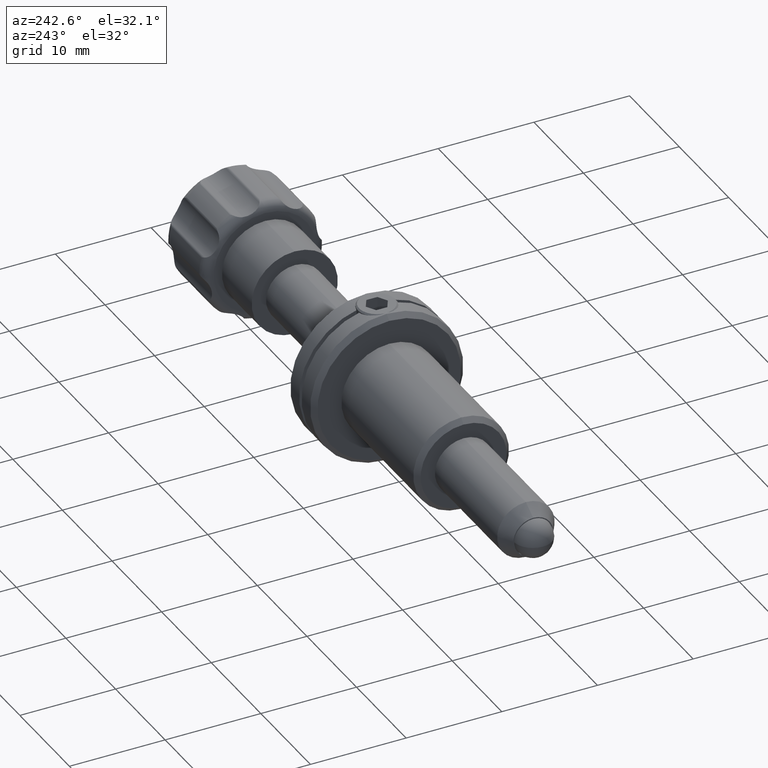
[diagram: clean part render]
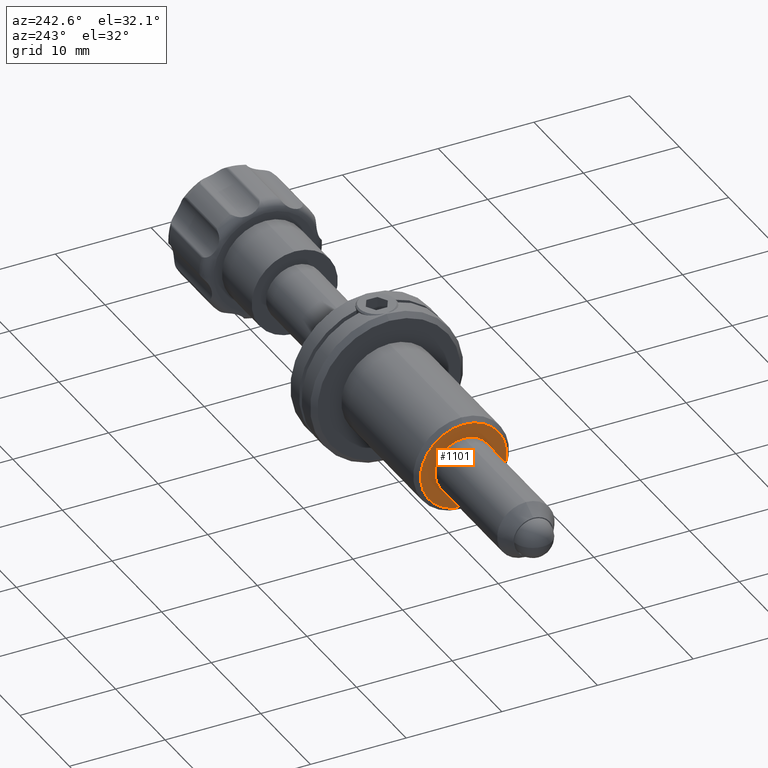
[diagram: same view with one face highlighted and labeled with its STEP entity id]
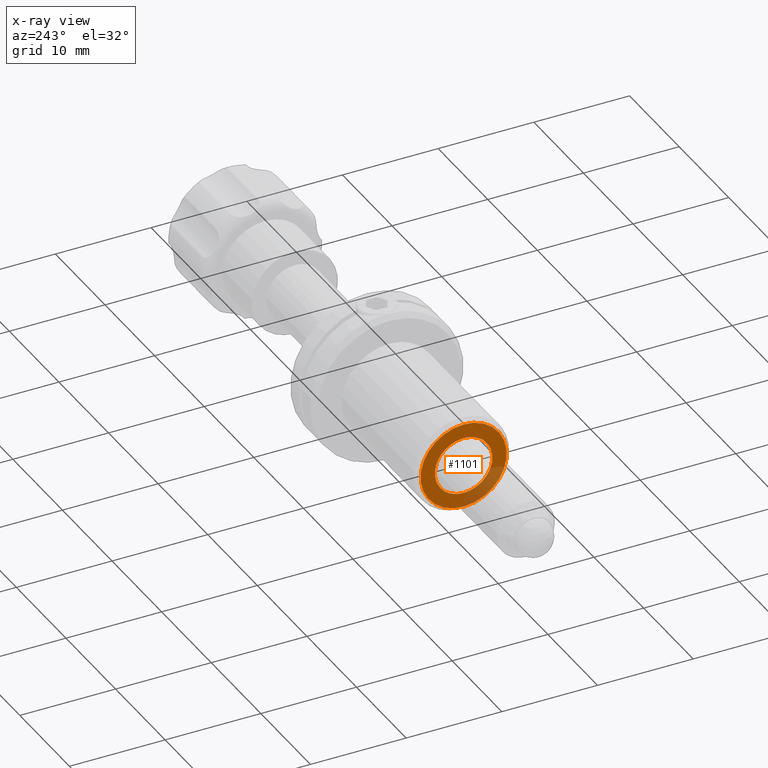
[diagram: x-ray of the same camera — body ghosted, the highlighted face saturated]
A machine part, auxiliary view. The second image highlights one B-rep face of the part: STEP entity #1101.
The next image is the same camera in x-ray: the body ghosted, the highlighted face saturated — about 19% of this face is hidden behind the body in this view.
In plain terms, the highlighted planar face has unit normal (1, 0, -0).
Its self-contained STEP definition (entity closure, byte-faithful):
#123 = PLANE ( 'NONE',  #1872 ) ;
#212 = DIRECTION ( 'NONE',  ( 1.000000000000000000, 0.000000000000000000, 0.000000000000000000 ) ) ;
#226 = CIRCLE ( 'NONE', #2357, 4.500000000000000888 ) ;
#242 = ORIENTED_EDGE ( 'NONE', *, *, #3162, .T. ) ;
#296 = ORIENTED_EDGE ( 'NONE', *, *, #3621, .T. ) ;
#304 = ORIENTED_EDGE ( 'NONE', *, *, #3280, .T. ) ;
#340 = VERTEX_POINT ( 'NONE', #1592 ) ;
#538 = DIRECTION ( 'NONE',  ( 0.000000000000000000, 0.000000000000000000, 1.000000000000000000 ) ) ;
#665 = CARTESIAN_POINT ( 'NONE',  ( -12.99999999999999822, -5.817072295949927426E-16, -4.500000000000000888 ) ) ;
#730 = AXIS2_PLACEMENT_3D ( 'NONE', #2264, #3158, #3104 ) ;
#781 = DIRECTION ( 'NONE',  ( 0.000000000000000000, 0.000000000000000000, 1.000000000000000000 ) ) ;
#1069 = CARTESIAN_POINT ( 'NONE',  ( -12.99999999999999822, 0.000000000000000000, -2.999999999999995559 ) ) ;
#1090 = CARTESIAN_POINT ( 'NONE',  ( -12.99999999999999822, 0.000000000000000000, 0.000000000000000000 ) ) ;
#1101 = ADVANCED_FACE ( 'NONE', ( #2228, #3738 ), #123, .F. ) ;
#1312 = EDGE_LOOP ( 'NONE', ( #296, #3028 ) ) ;
#1592 = CARTESIAN_POINT ( 'NONE',  ( -12.99999999999999822, 0.000000000000000000, 4.500000000000000888 ) ) ;
#1814 = EDGE_LOOP ( 'NONE', ( #242, #304 ) ) ;
#1872 = AXIS2_PLACEMENT_3D ( 'NONE', #2507, #3126, #781 ) ;
#2166 = CIRCLE ( 'NONE', #3539, 4.500000000000000888 ) ;
#2228 = FACE_BOUND ( 'NONE', #1312, .T. ) ;
#2264 = CARTESIAN_POINT ( 'NONE',  ( -12.99999999999999822, 0.000000000000000000, 0.000000000000000000 ) ) ;
#2357 = AXIS2_PLACEMENT_3D ( 'NONE', #1090, #3422, #2546 ) ;
#2507 = CARTESIAN_POINT ( 'NONE',  ( -12.99999999999999822, -4.999999999999998224, 0.000000000000000000 ) ) ;
#2541 = DIRECTION ( 'NONE',  ( 0.000000000000000000, 0.000000000000000000, 1.000000000000000000 ) ) ;
#2546 = DIRECTION ( 'NONE',  ( 0.000000000000000000, 0.000000000000000000, 1.000000000000000000 ) ) ;
#2895 = CARTESIAN_POINT ( 'NONE',  ( -12.99999999999999822, 0.000000000000000000, 0.000000000000000000 ) ) ;
#3028 = ORIENTED_EDGE ( 'NONE', *, *, #3598, .T. ) ;
#3104 = DIRECTION ( 'NONE',  ( 0.000000000000000000, 0.000000000000000000, 1.000000000000000000 ) ) ;
#3111 = VERTEX_POINT ( 'NONE', #665 ) ;
#3126 = DIRECTION ( 'NONE',  ( 1.000000000000000000, 0.000000000000000000, -0.000000000000000000 ) ) ;
#3158 = DIRECTION ( 'NONE',  ( 1.000000000000000000, 0.000000000000000000, 0.000000000000000000 ) ) ;
#3162 = EDGE_CURVE ( 'NONE', #340, #3111, #226, .T. ) ;
#3237 = CARTESIAN_POINT ( 'NONE',  ( -12.99999999999999822, -3.673940397442054445E-16, 2.999999999999995559 ) ) ;
#3279 = DIRECTION ( 'NONE',  ( -1.000000000000000000, -0.000000000000000000, -0.000000000000000000 ) ) ;
#3280 = EDGE_CURVE ( 'NONE', #3111, #340, #2166, .T. ) ;
#3422 = DIRECTION ( 'NONE',  ( -1.000000000000000000, -0.000000000000000000, -0.000000000000000000 ) ) ;
#3477 = CIRCLE ( 'NONE', #3605, 2.999999999999995559 ) ;
#3518 = CARTESIAN_POINT ( 'NONE',  ( -12.99999999999999822, 0.000000000000000000, 0.000000000000000000 ) ) ;
#3539 = AXIS2_PLACEMENT_3D ( 'NONE', #3518, #3279, #538 ) ;
#3542 = CIRCLE ( 'NONE', #730, 2.999999999999995559 ) ;
#3569 = VERTEX_POINT ( 'NONE', #1069 ) ;
#3598 = EDGE_CURVE ( 'NONE', #3706, #3569, #3477, .T. ) ;
#3605 = AXIS2_PLACEMENT_3D ( 'NONE', #2895, #212, #2541 ) ;
#3621 = EDGE_CURVE ( 'NONE', #3569, #3706, #3542, .T. ) ;
#3706 = VERTEX_POINT ( 'NONE', #3237 ) ;
#3738 = FACE_OUTER_BOUND ( 'NONE', #1814, .T. ) ;